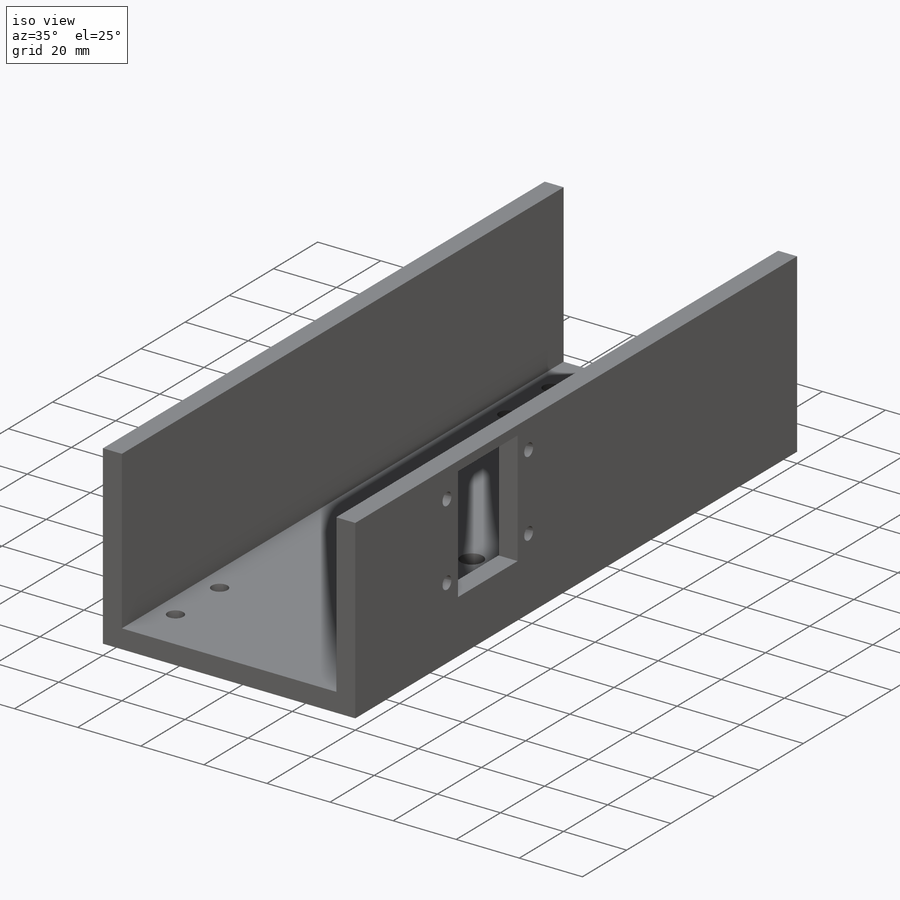
[diagram: iso view]
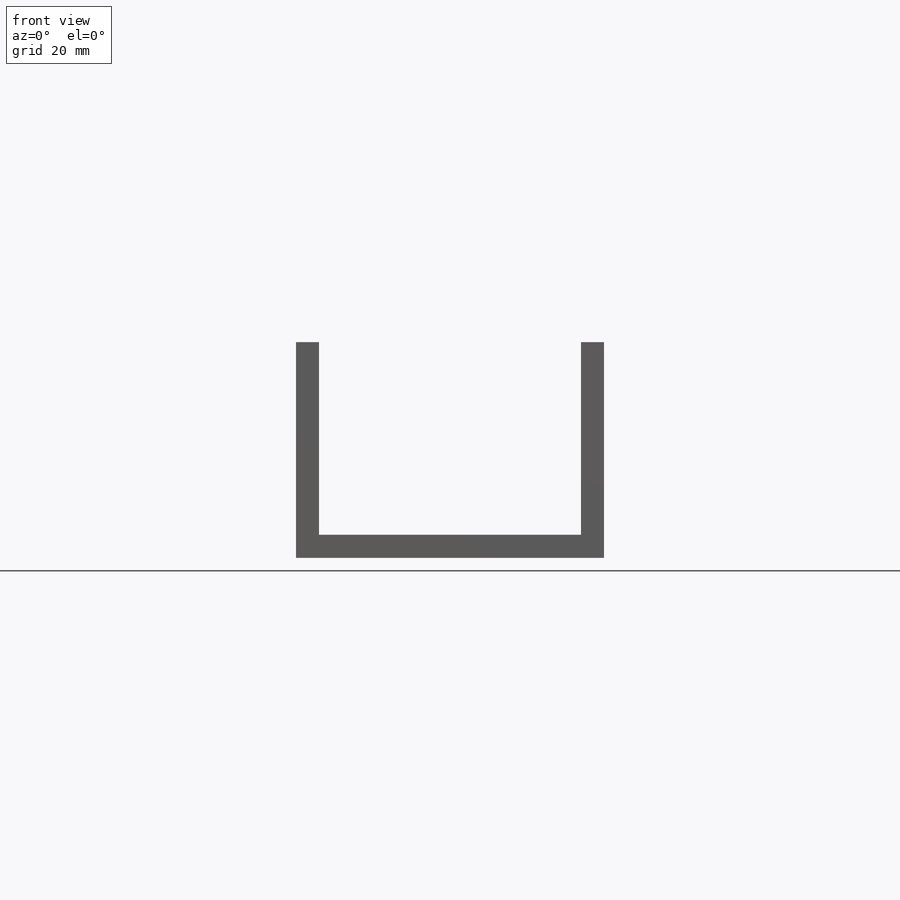
[diagram: front view]
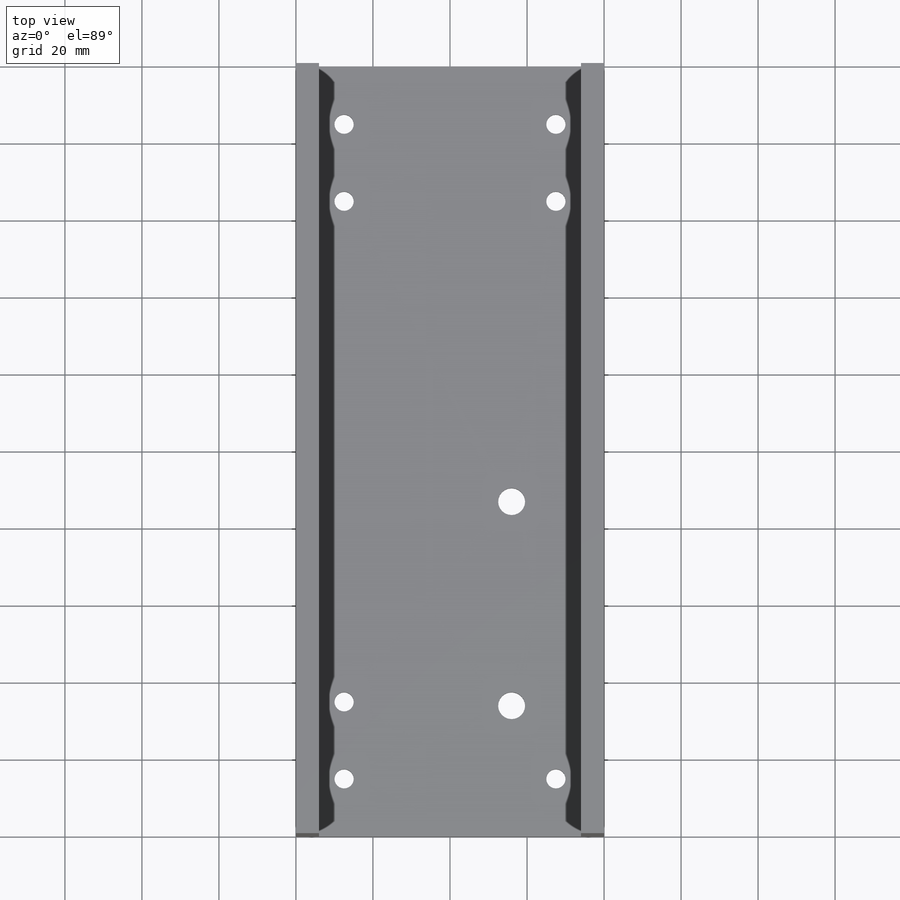
[diagram: top view]
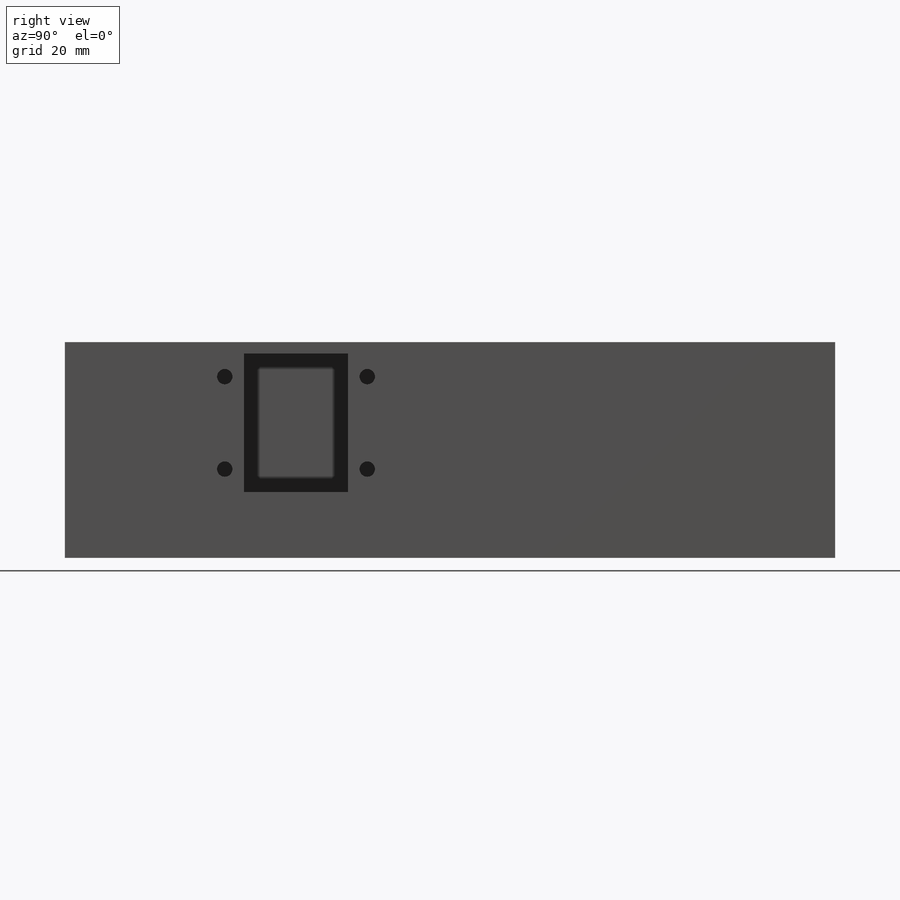
[diagram: right view]
SOLIDWORKS PART (.sldprt)
format: sldprt  version: not decoded by parser v0  size: 321,536 bytes
history: native  units: mm
features: sketch x7, cut_extrude x4, plane x3, material x1, extrude x1 (+10 scaffold rows collapsed)
feature tree (26):
  scaffold x10  (default folders/planes/origin — collapsed)
  material  "6061 合金"
  plane  "前视基准面"
  plane  "上视基准面"
  plane  "右视基准面"
  sketch  "草图1"  dims[D1=80.0mm D2=6.0mm D3=6.0mm D4=50.0mm D5=6.0mm]
  extrude  "凸台-拉伸1"  Depth=200mm
  sketch  "草图4"  dims[c1.D4=5.0mm c1.D5=5.0mm c1.D6=5.0mm c1.D7=5.0mm c1.D1=~25.212876mm c1.D2=~30.921452mm c2.D1=55.0mm c2.D2=15.0mm c2.D3=20.0mm c2.D8=~35.180806mm]
  cut_extrude  "切除-拉伸2"  [1 undecoded]
  sketch  "草图3"  dims[c1.D1=~18.750741mm c1.D2=5.0mm c1.D4=10.0mm c1.D5=5.0mm c2.D1=60.0mm c2.D2=~2.170366mm c2.D3=18.0mm c2.D5=30.0mm c3.D1=60.0mm]
  sketch  "草图6"  dims[D1=5.0mm D2=5.0mm]
  sketch  "草图8"  dims[c1.D1=4.0mm c1.D2=4.0mm c1.D3=4.0mm c1.D4=4.0mm c1.D5=36.0mm c1.D6=37.0mm c1.D7=24.4323mm c1.D8=37.0mm c2.D6=6.0mm c2.D8=5.0mm c2.D7=6.0mm c2.D9=5.0mm c2.D1=3.0mm c2.D3=27.0mm c2.D10=56.0mm]
  cut_extrude  "切除-拉伸5"  Depth=10mm
  sketch  "草图9"  dims[D3=7.0mm D1=34.0mm D2=24.0mm]
  cut_extrude  "切除-拉伸6"  Depth=10mm
  sketch  "草图10"  dims[D2=7.0mm D1=53.0mm D3=~10.105033mm]
  cut_extrude  "切除-拉伸7"  Depth=10mm
decode coverage: 11 of 12 modeling features carry decoded parameters
note: ~ marks probable driven/reference dimensions
note: 1 parameter value undecoded
note: suppression state not decoded; provenance and decode notes live in map.json
